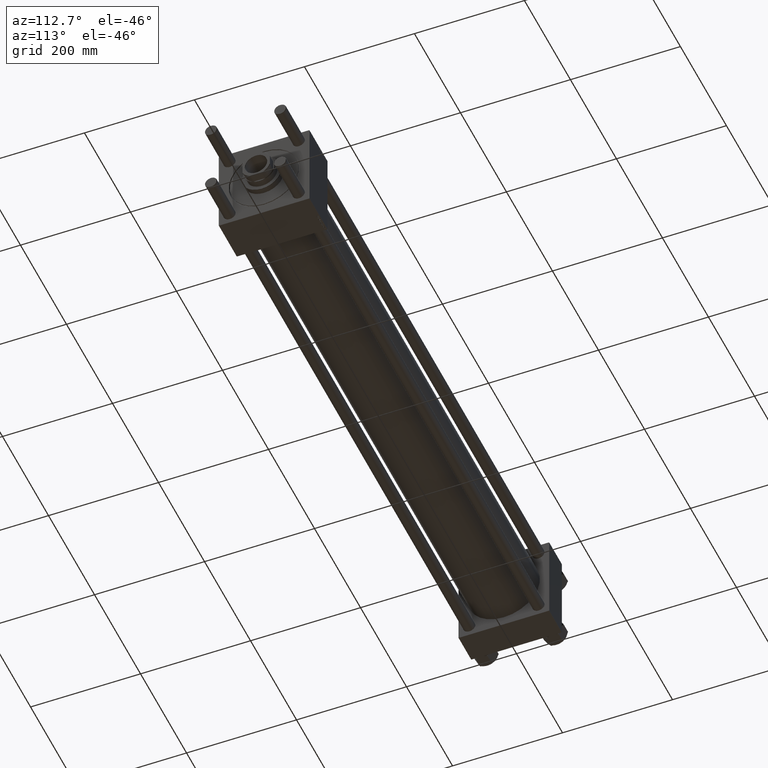
[diagram: clean part render]
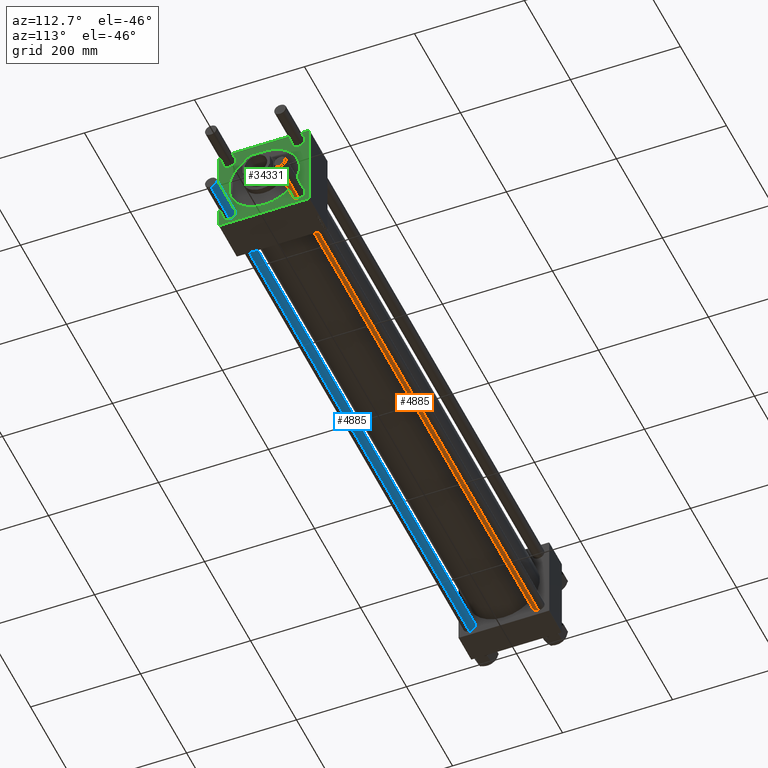
[diagram: same view with three faces highlighted in distinct colors, each labeled with its STEP entity id]
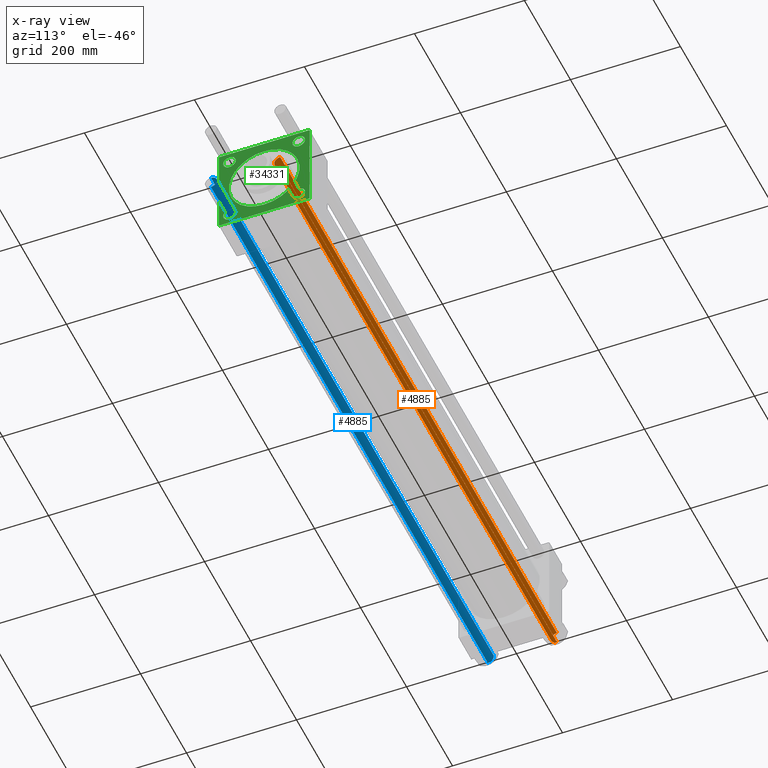
[diagram: x-ray of the same camera — body ghosted, the three highlighted faces saturated]
A machine part, auxiliary view with three faces highlighted in distinct colors.
The next image is the same camera in x-ray (body ghosted, the three faces saturated) — at least one of them is partly hidden behind the body in this view.
Their STEP definitions:

[orange] entity #4885 — the highlighted cylindrical surface (edge-blend (fillet) strip) has radius 11 mm, axis along (-1, -0, 0).
#2107 = DIRECTION ( 'NONE',  ( -0.000000000000000000, -0.000000000000000000, -1.000000000000000000 ) ) ;
#2111 = VERTEX_POINT ( 'NONE', #36277 ) ;
#2898 = EDGE_CURVE ( 'NONE', #6579, #2111, #17863, .T. ) ;
#3166 = AXIS2_PLACEMENT_3D ( 'NONE', #38787, #30669, #26319 ) ;
#4885 = ADVANCED_FACE ( 'NONE', ( #8648 ), #47747, .T. ) ;
#5947 = LINE ( 'NONE', #42118, #38574 ) ;
#6579 = VERTEX_POINT ( 'NONE', #26058 ) ;
#7023 = VERTEX_POINT ( 'NONE', #49459 ) ;
#8648 = FACE_OUTER_BOUND ( 'NONE', #45662, .T. ) ;
#16634 = VERTEX_POINT ( 'NONE', #45333 ) ;
#17863 = CIRCLE ( 'NONE', #53002, 11.00000000000000000 ) ;
#18163 = ORIENTED_EDGE ( 'NONE', *, *, #21328, .F. ) ;
#19366 = EDGE_CURVE ( 'NONE', #2111, #7023, #5947, .T. ) ;
#20178 = ORIENTED_EDGE ( 'NONE', *, *, #19366, .T. ) ;
#21328 = EDGE_CURVE ( 'NONE', #6579, #16634, #46107, .T. ) ;
#22035 = CARTESIAN_POINT ( 'NONE',  ( 0.000000000000000000, 0.000000000000000000, 1203.499999999999545 ) ) ;
#22895 = VECTOR ( 'NONE', #2107, 1000.000000000000000 ) ;
#24105 = CARTESIAN_POINT ( 'NONE',  ( 11.00000000000000000, 1.347111479062088405E-15, 1204.000000000000000 ) ) ;
#25084 = AXIS2_PLACEMENT_3D ( 'NONE', #50515, #31718, #45303 ) ;
#26058 = CARTESIAN_POINT ( 'NONE',  ( 11.00000000000000000, 1.347111479062088405E-15, 1203.499999999999545 ) ) ;
#26319 = DIRECTION ( 'NONE',  ( -1.000000000000000000, 0.000000000000000000, 0.000000000000000000 ) ) ;
#30669 = DIRECTION ( 'NONE',  ( -0.000000000000000000, -0.000000000000000000, -1.000000000000000000 ) ) ;
#31718 = DIRECTION ( 'NONE',  ( -0.000000000000000000, -0.000000000000000000, 1.000000000000000000 ) ) ;
#33739 = DIRECTION ( 'NONE',  ( -0.000000000000000000, -0.000000000000000000, -1.000000000000000000 ) ) ;
#35069 = DIRECTION ( 'NONE',  ( 1.000000000000000000, 0.000000000000000000, 0.000000000000000000 ) ) ;
#36277 = CARTESIAN_POINT ( 'NONE',  ( -11.00000000000000000, 0.000000000000000000, 1203.499999999999545 ) ) ;
#36973 = EDGE_CURVE ( 'NONE', #7023, #16634, #52806, .T. ) ;
#38574 = VECTOR ( 'NONE', #33739, 1000.000000000000000 ) ;
#38787 = CARTESIAN_POINT ( 'NONE',  ( 0.000000000000000000, 0.000000000000000000, 1204.000000000000000 ) ) ;
#42118 = CARTESIAN_POINT ( 'NONE',  ( -11.00000000000000000, 0.000000000000000000, 1204.000000000000000 ) ) ;
#43171 = ORIENTED_EDGE ( 'NONE', *, *, #2898, .T. ) ;
#44037 = DIRECTION ( 'NONE',  ( 0.000000000000000000, 0.000000000000000000, -1.000000000000000000 ) ) ;
#45303 = DIRECTION ( 'NONE',  ( 1.000000000000000000, 0.000000000000000000, 0.000000000000000000 ) ) ;
#45333 = CARTESIAN_POINT ( 'NONE',  ( 11.00000000000000000, 1.347111479062088405E-15, 0.5000000000001669775 ) ) ;
#45662 = EDGE_LOOP ( 'NONE', ( #18163, #43171, #20178, #52606 ) ) ;
#46107 = LINE ( 'NONE', #24105, #22895 ) ;
#47747 = CYLINDRICAL_SURFACE ( 'NONE', #3166, 11.00000000000000000 ) ;
#49459 = CARTESIAN_POINT ( 'NONE',  ( -11.00000000000000000, 0.000000000000000000, 0.5000000000001669775 ) ) ;
#50515 = CARTESIAN_POINT ( 'NONE',  ( 0.000000000000000000, 0.000000000000000000, 0.5000000000001669775 ) ) ;
#52606 = ORIENTED_EDGE ( 'NONE', *, *, #36973, .T. ) ;
#52806 = CIRCLE ( 'NONE', #25084, 11.00000000000000000 ) ;
#53002 = AXIS2_PLACEMENT_3D ( 'NONE', #22035, #44037, #35069 ) ;

[blue] entity #4885 — the highlighted cylindrical surface (edge-blend (fillet) strip) has radius 11 mm, axis along (1, 0, 0).
#2107 = DIRECTION ( 'NONE',  ( -0.000000000000000000, -0.000000000000000000, -1.000000000000000000 ) ) ;
#2111 = VERTEX_POINT ( 'NONE', #36277 ) ;
#2898 = EDGE_CURVE ( 'NONE', #6579, #2111, #17863, .T. ) ;
#3166 = AXIS2_PLACEMENT_3D ( 'NONE', #38787, #30669, #26319 ) ;
#4885 = ADVANCED_FACE ( 'NONE', ( #8648 ), #47747, .T. ) ;
#5947 = LINE ( 'NONE', #42118, #38574 ) ;
#6579 = VERTEX_POINT ( 'NONE', #26058 ) ;
#7023 = VERTEX_POINT ( 'NONE', #49459 ) ;
#8648 = FACE_OUTER_BOUND ( 'NONE', #45662, .T. ) ;
#16634 = VERTEX_POINT ( 'NONE', #45333 ) ;
#17863 = CIRCLE ( 'NONE', #53002, 11.00000000000000000 ) ;
#18163 = ORIENTED_EDGE ( 'NONE', *, *, #21328, .F. ) ;
#19366 = EDGE_CURVE ( 'NONE', #2111, #7023, #5947, .T. ) ;
#20178 = ORIENTED_EDGE ( 'NONE', *, *, #19366, .T. ) ;
#21328 = EDGE_CURVE ( 'NONE', #6579, #16634, #46107, .T. ) ;
#22035 = CARTESIAN_POINT ( 'NONE',  ( 0.000000000000000000, 0.000000000000000000, 1203.499999999999545 ) ) ;
#22895 = VECTOR ( 'NONE', #2107, 1000.000000000000000 ) ;
#24105 = CARTESIAN_POINT ( 'NONE',  ( 11.00000000000000000, 1.347111479062088405E-15, 1204.000000000000000 ) ) ;
#25084 = AXIS2_PLACEMENT_3D ( 'NONE', #50515, #31718, #45303 ) ;
#26058 = CARTESIAN_POINT ( 'NONE',  ( 11.00000000000000000, 1.347111479062088405E-15, 1203.499999999999545 ) ) ;
#26319 = DIRECTION ( 'NONE',  ( -1.000000000000000000, 0.000000000000000000, 0.000000000000000000 ) ) ;
#30669 = DIRECTION ( 'NONE',  ( -0.000000000000000000, -0.000000000000000000, -1.000000000000000000 ) ) ;
#31718 = DIRECTION ( 'NONE',  ( -0.000000000000000000, -0.000000000000000000, 1.000000000000000000 ) ) ;
#33739 = DIRECTION ( 'NONE',  ( -0.000000000000000000, -0.000000000000000000, -1.000000000000000000 ) ) ;
#35069 = DIRECTION ( 'NONE',  ( 1.000000000000000000, 0.000000000000000000, 0.000000000000000000 ) ) ;
#36277 = CARTESIAN_POINT ( 'NONE',  ( -11.00000000000000000, 0.000000000000000000, 1203.499999999999545 ) ) ;
#36973 = EDGE_CURVE ( 'NONE', #7023, #16634, #52806, .T. ) ;
#38574 = VECTOR ( 'NONE', #33739, 1000.000000000000000 ) ;
#38787 = CARTESIAN_POINT ( 'NONE',  ( 0.000000000000000000, 0.000000000000000000, 1204.000000000000000 ) ) ;
#42118 = CARTESIAN_POINT ( 'NONE',  ( -11.00000000000000000, 0.000000000000000000, 1204.000000000000000 ) ) ;
#43171 = ORIENTED_EDGE ( 'NONE', *, *, #2898, .T. ) ;
#44037 = DIRECTION ( 'NONE',  ( 0.000000000000000000, 0.000000000000000000, -1.000000000000000000 ) ) ;
#45303 = DIRECTION ( 'NONE',  ( 1.000000000000000000, 0.000000000000000000, 0.000000000000000000 ) ) ;
#45333 = CARTESIAN_POINT ( 'NONE',  ( 11.00000000000000000, 1.347111479062088405E-15, 0.5000000000001669775 ) ) ;
#45662 = EDGE_LOOP ( 'NONE', ( #18163, #43171, #20178, #52606 ) ) ;
#46107 = LINE ( 'NONE', #24105, #22895 ) ;
#47747 = CYLINDRICAL_SURFACE ( 'NONE', #3166, 11.00000000000000000 ) ;
#49459 = CARTESIAN_POINT ( 'NONE',  ( -11.00000000000000000, 0.000000000000000000, 0.5000000000001669775 ) ) ;
#50515 = CARTESIAN_POINT ( 'NONE',  ( 0.000000000000000000, 0.000000000000000000, 0.5000000000001669775 ) ) ;
#52606 = ORIENTED_EDGE ( 'NONE', *, *, #36973, .T. ) ;
#52806 = CIRCLE ( 'NONE', #25084, 11.00000000000000000 ) ;
#53002 = AXIS2_PLACEMENT_3D ( 'NONE', #22035, #44037, #35069 ) ;

[green] entity #34331 — the highlighted planar face has unit normal (-1, 0, 0).
#116 = ORIENTED_EDGE ( 'NONE', *, *, #16353, .F. ) ;
#460 = AXIS2_PLACEMENT_3D ( 'NONE', #45914, #33170, #1340 ) ;
#561 = VERTEX_POINT ( 'NONE', #50786 ) ;
#601 = EDGE_CURVE ( 'NONE', #49047, #57283, #10407, .T. ) ;
#709 = ORIENTED_EDGE ( 'NONE', *, *, #41874, .T. ) ;
#1340 = DIRECTION ( 'NONE',  ( 0.000000000000000000, 0.000000000000000000, 1.000000000000000000 ) ) ;
#1859 = AXIS2_PLACEMENT_3D ( 'NONE', #28068, #46009, #6920 ) ;
#2386 = FACE_BOUND ( 'NONE', #24869, .T. ) ;
#4147 = CARTESIAN_POINT ( 'NONE',  ( 1097.000000000000000, -62.94999999999998153, -62.95000000000001705 ) ) ;
#4433 = CARTESIAN_POINT ( 'NONE',  ( 1097.000000000000000, 62.95000000000000284, 51.45000000000015916 ) ) ;
#4810 = DIRECTION ( 'NONE',  ( 0.000000000000000000, -0.7071067811865474617, 0.7071067811865474617 ) ) ;
#4876 = DIRECTION ( 'NONE',  ( 0.000000000000000000, 0.000000000000000000, 1.000000000000000000 ) ) ;
#5986 = DIRECTION ( 'NONE',  ( 0.000000000000000000, 0.000000000000000000, -1.000000000000000000 ) ) ;
#6756 = DIRECTION ( 'NONE',  ( 0.000000000000000000, 0.7071067811865573427, -0.7071067811865378028 ) ) ;
#6920 = DIRECTION ( 'NONE',  ( 0.000000000000000000, 0.000000000000000000, 1.000000000000000000 ) ) ;
#7020 = CARTESIAN_POINT ( 'NONE',  ( 1097.000000000000000, 62.95000000000000284, -62.95000000000000284 ) ) ;
#7411 = CARTESIAN_POINT ( 'NONE',  ( 1097.000000000000000, -62.94999999999998153, -74.44999999999953388 ) ) ;
#8365 = AXIS2_PLACEMENT_3D ( 'NONE', #47244, #15984, #32789 ) ;
#8784 = VECTOR ( 'NONE', #50234, 1000.000000000000114 ) ;
#8917 = AXIS2_PLACEMENT_3D ( 'NONE', #56191, #16522, #24929 ) ;
#8995 = EDGE_CURVE ( 'NONE', #17113, #16687, #15121, .T. ) ;
#9088 = AXIS2_PLACEMENT_3D ( 'NONE', #21485, #39150, #52758 ) ;
#9432 = VERTEX_POINT ( 'NONE', #38038 ) ;
#10332 = ORIENTED_EDGE ( 'NONE', *, *, #31569, .T. ) ;
#10407 = CIRCLE ( 'NONE', #37249, 11.49999999999950973 ) ;
#11032 = ORIENTED_EDGE ( 'NONE', *, *, #8995, .T. ) ;
#11375 = ORIENTED_EDGE ( 'NONE', *, *, #20417, .T. ) ;
#13034 = EDGE_CURVE ( 'NONE', #36329, #34936, #26719, .T. ) ;
#13401 = DIRECTION ( 'NONE',  ( 0.000000000000000000, -1.000000000000000000, -1.682156097916904081E-16 ) ) ;
#13705 = DIRECTION ( 'NONE',  ( 0.000000000000000000, -1.682156097916903834E-16, -1.000000000000000000 ) ) ;
#14160 = VECTOR ( 'NONE', #4810, 1000.000000000000114 ) ;
#14504 = CIRCLE ( 'NONE', #40389, 11.49999999999984368 ) ;
#15026 = AXIS2_PLACEMENT_3D ( 'NONE', #49947, #49382, #40688 ) ;
#15121 = CIRCLE ( 'NONE', #460, 11.49999999999984368 ) ;
#15425 = DIRECTION ( 'NONE',  ( -1.000000000000000000, -0.000000000000000000, 0.000000000000000000 ) ) ;
#15735 = CARTESIAN_POINT ( 'NONE',  ( 1097.000000000000000, -82.00000000000015632, -82.50000000000002842 ) ) ;
#15984 = DIRECTION ( 'NONE',  ( -1.000000000000000000, -0.000000000000000000, 0.000000000000000000 ) ) ;
#16353 = EDGE_CURVE ( 'NONE', #9432, #26705, #39717, .T. ) ;
#16452 = AXIS2_PLACEMENT_3D ( 'NONE', #34672, #56658, #39868 ) ;
#16522 = DIRECTION ( 'NONE',  ( -1.000000000000000000, -0.000000000000000000, 0.000000000000000000 ) ) ;
#16687 = VERTEX_POINT ( 'NONE', #34311 ) ;
#17113 = VERTEX_POINT ( 'NONE', #26422 ) ;
#17281 = EDGE_LOOP ( 'NONE', ( #32636, #57274, #116, #32748, #47607, #709, #49649, #41223 ) ) ;
#17349 = EDGE_CURVE ( 'NONE', #33033, #22940, #33910, .T. ) ;
#17900 = ORIENTED_EDGE ( 'NONE', *, *, #52999, .T. ) ;
#18122 = EDGE_CURVE ( 'NONE', #25383, #24104, #14504, .T. ) ;
#18514 = VECTOR ( 'NONE', #13705, 1000.000000000000000 ) ;
#19584 = CARTESIAN_POINT ( 'NONE',  ( 1097.000000000000000, 82.50000000000001421, 82.50000000000000000 ) ) ;
#19811 = EDGE_LOOP ( 'NONE', ( #50814, #55966 ) ) ;
#20009 = VECTOR ( 'NONE', #26407, 1000.000000000000000 ) ;
#20037 = FACE_OUTER_BOUND ( 'NONE', #17281, .T. ) ;
#20387 = ORIENTED_EDGE ( 'NONE', *, *, #22141, .T. ) ;
#20417 = EDGE_CURVE ( 'NONE', #30783, #23146, #32157, .T. ) ;
#21485 = CARTESIAN_POINT ( 'NONE',  ( 1097.000000000000000, 0.000000000000000000, 0.000000000000000000 ) ) ;
#22141 = EDGE_CURVE ( 'NONE', #23146, #30783, #55285, .T. ) ;
#22940 = VERTEX_POINT ( 'NONE', #23105 ) ;
#23105 = CARTESIAN_POINT ( 'NONE',  ( 1097.000000000000000, -62.94999999999998153, 74.44999999999986073 ) ) ;
#23146 = VERTEX_POINT ( 'NONE', #54299 ) ;
#23577 = CIRCLE ( 'NONE', #38396, 11.49999999999984368 ) ;
#24104 = VERTEX_POINT ( 'NONE', #34034 ) ;
#24377 = FACE_BOUND ( 'NONE', #56164, .T. ) ;
#24869 = EDGE_LOOP ( 'NONE', ( #11375, #20387 ) ) ;
#24929 = DIRECTION ( 'NONE',  ( 0.000000000000000000, 0.000000000000000000, 1.000000000000000000 ) ) ;
#25040 = CARTESIAN_POINT ( 'NONE',  ( 1097.000000000000000, -62.94999999999998153, -62.95000000000001705 ) ) ;
#25383 = VERTEX_POINT ( 'NONE', #4433 ) ;
#26407 = DIRECTION ( 'NONE',  ( 0.000000000000000000, -1.000000000000000000, 0.000000000000000000 ) ) ;
#26422 = CARTESIAN_POINT ( 'NONE',  ( 1097.000000000000000, 62.95000000000000284, -51.45000000000015916 ) ) ;
#26705 = VERTEX_POINT ( 'NONE', #52422 ) ;
#26719 = LINE ( 'NONE', #34829, #43883 ) ;
#26795 = VECTOR ( 'NONE', #5986, 1000.000000000000000 ) ;
#26818 = LINE ( 'NONE', #30871, #14160 ) ;
#27041 = EDGE_CURVE ( 'NONE', #53799, #45923, #36975, .T. ) ;
#27529 = CARTESIAN_POINT ( 'NONE',  ( 1097.000000000000000, 0.000000000000000000, -64.24999999999970157 ) ) ;
#27700 = EDGE_CURVE ( 'NONE', #22940, #33033, #33305, .T. ) ;
#28068 = CARTESIAN_POINT ( 'NONE',  ( 1097.000000000000000, -62.94999999999998153, 62.95000000000001705 ) ) ;
#28580 = EDGE_CURVE ( 'NONE', #51174, #561, #42391, .T. ) ;
#28608 = CARTESIAN_POINT ( 'NONE',  ( 1097.000000000000000, 81.99999999999995737, 82.50000000000000000 ) ) ;
#28729 = DIRECTION ( 'NONE',  ( 0.000000000000000000, 0.000000000000000000, 1.000000000000000000 ) ) ;
#29668 = VECTOR ( 'NONE', #45670, 1000.000000000000114 ) ;
#30783 = VERTEX_POINT ( 'NONE', #27529 ) ;
#30871 = CARTESIAN_POINT ( 'NONE',  ( 1097.000000000000000, 81.99999999999995737, 82.50000000000000000 ) ) ;
#31051 = CARTESIAN_POINT ( 'NONE',  ( 1097.000000000000000, 82.50000000000001421, 81.99999999999994316 ) ) ;
#31361 = DIRECTION ( 'NONE',  ( -1.000000000000000000, -0.000000000000000000, 0.000000000000000000 ) ) ;
#31569 = EDGE_CURVE ( 'NONE', #57283, #49047, #38964, .T. ) ;
#32157 = CIRCLE ( 'NONE', #16452, 64.24999999999970157 ) ;
#32636 = ORIENTED_EDGE ( 'NONE', *, *, #28580, .T. ) ;
#32748 = ORIENTED_EDGE ( 'NONE', *, *, #34862, .T. ) ;
#32789 = DIRECTION ( 'NONE',  ( 0.000000000000000000, 0.000000000000000000, 1.000000000000000000 ) ) ;
#33033 = VERTEX_POINT ( 'NONE', #37308 ) ;
#33114 = LINE ( 'NONE', #15735, #44006 ) ;
#33170 = DIRECTION ( 'NONE',  ( -1.000000000000000000, -0.000000000000000000, 0.000000000000000000 ) ) ;
#33305 = CIRCLE ( 'NONE', #1859, 11.49999999999984368 ) ;
#33355 = FACE_BOUND ( 'NONE', #19811, .T. ) ;
#33910 = CIRCLE ( 'NONE', #8917, 11.49999999999984368 ) ;
#34034 = CARTESIAN_POINT ( 'NONE',  ( 1097.000000000000000, 62.95000000000000284, 74.44999999999984652 ) ) ;
#34311 = CARTESIAN_POINT ( 'NONE',  ( 1097.000000000000000, 62.95000000000000284, -74.44999999999984652 ) ) ;
#34331 = ADVANCED_FACE ( 'NONE', ( #42031, #24377, #55644, #33355, #2386, #20037 ), #46959, .F. ) ;
#34672 = CARTESIAN_POINT ( 'NONE',  ( 1097.000000000000000, 0.000000000000000000, 0.000000000000000000 ) ) ;
#34829 = CARTESIAN_POINT ( 'NONE',  ( 1097.000000000000000, 82.50000000000001421, 82.50000000000000000 ) ) ;
#34841 = DIRECTION ( 'NONE',  ( 0.000000000000000000, 0.000000000000000000, 1.000000000000000000 ) ) ;
#34862 = EDGE_CURVE ( 'NONE', #9432, #45923, #53795, .T. ) ;
#34936 = VERTEX_POINT ( 'NONE', #38438 ) ;
#36197 = CARTESIAN_POINT ( 'NONE',  ( 1097.000000000000000, -62.94999999999998153, -51.45000000000050733 ) ) ;
#36329 = VERTEX_POINT ( 'NONE', #28608 ) ;
#36975 = LINE ( 'NONE', #19584, #26795 ) ;
#37249 = AXIS2_PLACEMENT_3D ( 'NONE', #4147, #31361, #34841 ) ;
#37308 = CARTESIAN_POINT ( 'NONE',  ( 1097.000000000000000, -62.94999999999998153, 51.45000000000017337 ) ) ;
#38038 = CARTESIAN_POINT ( 'NONE',  ( 1097.000000000000000, 82.00000000000018474, -82.50000000000002842 ) ) ;
#38068 = AXIS2_PLACEMENT_3D ( 'NONE', #25040, #38366, #38640 ) ;
#38366 = DIRECTION ( 'NONE',  ( -1.000000000000000000, -0.000000000000000000, 0.000000000000000000 ) ) ;
#38396 = AXIS2_PLACEMENT_3D ( 'NONE', #7020, #15425, #28729 ) ;
#38438 = CARTESIAN_POINT ( 'NONE',  ( 1097.000000000000000, -81.99999999999990052, 82.49999999999997158 ) ) ;
#38640 = DIRECTION ( 'NONE',  ( 0.000000000000000000, 0.000000000000000000, 1.000000000000000000 ) ) ;
#38964 = CIRCLE ( 'NONE', #38068, 11.49999999999950973 ) ;
#39150 = DIRECTION ( 'NONE',  ( -1.000000000000000000, -0.000000000000000000, 0.000000000000000000 ) ) ;
#39393 = CARTESIAN_POINT ( 'NONE',  ( 1097.000000000000000, -82.49999999999997158, 81.99999999999991473 ) ) ;
#39717 = LINE ( 'NONE', #44351, #20009 ) ;
#39868 = DIRECTION ( 'NONE',  ( 0.000000000000000000, 0.000000000000000000, 1.000000000000000000 ) ) ;
#39908 = CARTESIAN_POINT ( 'NONE',  ( 1097.000000000000000, 62.95000000000000284, 62.95000000000000284 ) ) ;
#39997 = CIRCLE ( 'NONE', #15026, 11.49999999999984368 ) ;
#40389 = AXIS2_PLACEMENT_3D ( 'NONE', #39908, #49454, #4876 ) ;
#40455 = CARTESIAN_POINT ( 'NONE',  ( 1097.000000000000000, 82.50000000000001421, -82.00000000000019895 ) ) ;
#40688 = DIRECTION ( 'NONE',  ( 0.000000000000000000, 0.000000000000000000, 1.000000000000000000 ) ) ;
#41044 = EDGE_CURVE ( 'NONE', #24104, #25383, #39997, .T. ) ;
#41223 = ORIENTED_EDGE ( 'NONE', *, *, #52716, .T. ) ;
#41544 = ORIENTED_EDGE ( 'NONE', *, *, #41044, .T. ) ;
#41874 = EDGE_CURVE ( 'NONE', #53799, #36329, #26818, .T. ) ;
#42031 = FACE_BOUND ( 'NONE', #55569, .T. ) ;
#42391 = LINE ( 'NONE', #53373, #18514 ) ;
#43883 = VECTOR ( 'NONE', #13401, 1000.000000000000000 ) ;
#44006 = VECTOR ( 'NONE', #6756, 1000.000000000000000 ) ;
#44351 = CARTESIAN_POINT ( 'NONE',  ( 1097.000000000000000, 82.50000000000001421, -82.50000000000002842 ) ) ;
#45313 = CARTESIAN_POINT ( 'NONE',  ( 1097.000000000000000, -82.49999999999997158, 81.99999999999991473 ) ) ;
#45670 = DIRECTION ( 'NONE',  ( -0.000000000000000000, 0.7071067811865474617, 0.7071067811865474617 ) ) ;
#45914 = CARTESIAN_POINT ( 'NONE',  ( 1097.000000000000000, 62.95000000000000284, -62.95000000000000284 ) ) ;
#45923 = VERTEX_POINT ( 'NONE', #40455 ) ;
#46009 = DIRECTION ( 'NONE',  ( -1.000000000000000000, -0.000000000000000000, 0.000000000000000000 ) ) ;
#46959 = PLANE ( 'NONE',  #8365 ) ;
#47244 = CARTESIAN_POINT ( 'NONE',  ( 1097.000000000000000, 0.000000000000000000, 0.000000000000000000 ) ) ;
#47607 = ORIENTED_EDGE ( 'NONE', *, *, #27041, .F. ) ;
#49024 = EDGE_LOOP ( 'NONE', ( #49162, #41544 ) ) ;
#49047 = VERTEX_POINT ( 'NONE', #36197 ) ;
#49162 = ORIENTED_EDGE ( 'NONE', *, *, #18122, .T. ) ;
#49382 = DIRECTION ( 'NONE',  ( -1.000000000000000000, -0.000000000000000000, 0.000000000000000000 ) ) ;
#49454 = DIRECTION ( 'NONE',  ( -1.000000000000000000, -0.000000000000000000, 0.000000000000000000 ) ) ;
#49649 = ORIENTED_EDGE ( 'NONE', *, *, #13034, .T. ) ;
#49947 = CARTESIAN_POINT ( 'NONE',  ( 1097.000000000000000, 62.95000000000000284, 62.95000000000000284 ) ) ;
#49952 = LINE ( 'NONE', #45313, #8784 ) ;
#50016 = EDGE_CURVE ( 'NONE', #561, #26705, #33114, .T. ) ;
#50234 = DIRECTION ( 'NONE',  ( -0.000000000000000000, -0.7071067811865573427, -0.7071067811865376918 ) ) ;
#50786 = CARTESIAN_POINT ( 'NONE',  ( 1097.000000000000000, -82.50000000000000000, -82.00000000000019895 ) ) ;
#50814 = ORIENTED_EDGE ( 'NONE', *, *, #17349, .T. ) ;
#51174 = VERTEX_POINT ( 'NONE', #39393 ) ;
#52422 = CARTESIAN_POINT ( 'NONE',  ( 1097.000000000000000, -82.00000000000015632, -82.50000000000002842 ) ) ;
#52716 = EDGE_CURVE ( 'NONE', #34936, #51174, #49952, .T. ) ;
#52758 = DIRECTION ( 'NONE',  ( 0.000000000000000000, 0.000000000000000000, 1.000000000000000000 ) ) ;
#52999 = EDGE_CURVE ( 'NONE', #16687, #17113, #23577, .T. ) ;
#53373 = CARTESIAN_POINT ( 'NONE',  ( 1097.000000000000000, -82.49999999999997158, 82.49999999999997158 ) ) ;
#53795 = LINE ( 'NONE', #54925, #29668 ) ;
#53799 = VERTEX_POINT ( 'NONE', #31051 ) ;
#54299 = CARTESIAN_POINT ( 'NONE',  ( 1097.000000000000000, 7.868355684521706448E-15, 64.24999999999970157 ) ) ;
#54925 = CARTESIAN_POINT ( 'NONE',  ( 1097.000000000000000, 82.50000000000001421, -82.00000000000019895 ) ) ;
#55285 = CIRCLE ( 'NONE', #9088, 64.24999999999970157 ) ;
#55569 = EDGE_LOOP ( 'NONE', ( #10332, #55659 ) ) ;
#55644 = FACE_BOUND ( 'NONE', #49024, .T. ) ;
#55659 = ORIENTED_EDGE ( 'NONE', *, *, #601, .T. ) ;
#55966 = ORIENTED_EDGE ( 'NONE', *, *, #27700, .T. ) ;
#56164 = EDGE_LOOP ( 'NONE', ( #17900, #11032 ) ) ;
#56191 = CARTESIAN_POINT ( 'NONE',  ( 1097.000000000000000, -62.94999999999998153, 62.95000000000001705 ) ) ;
#56658 = DIRECTION ( 'NONE',  ( -1.000000000000000000, -0.000000000000000000, 0.000000000000000000 ) ) ;
#57274 = ORIENTED_EDGE ( 'NONE', *, *, #50016, .T. ) ;
#57283 = VERTEX_POINT ( 'NONE', #7411 ) ;